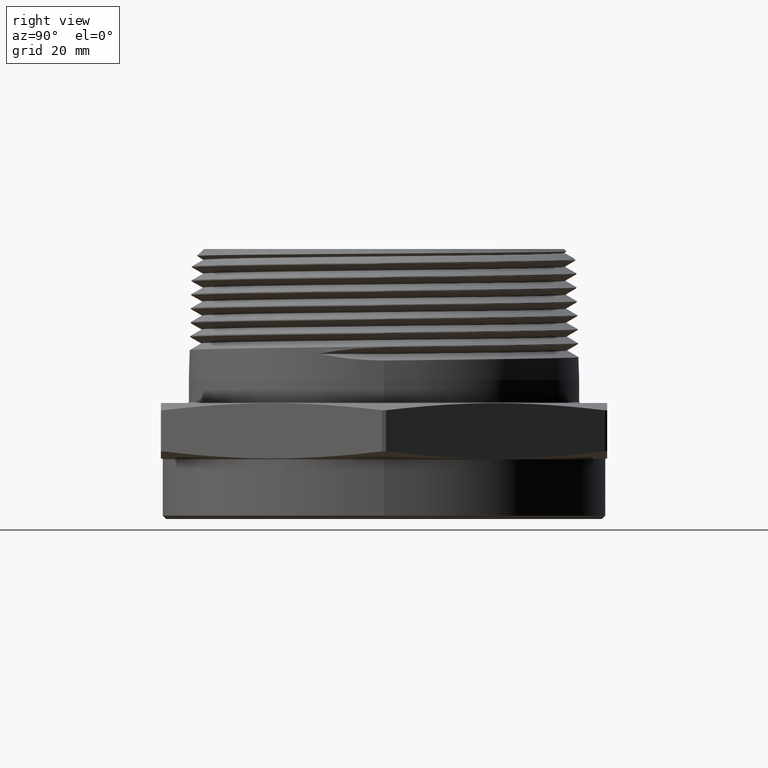
[diagram: clean part render]
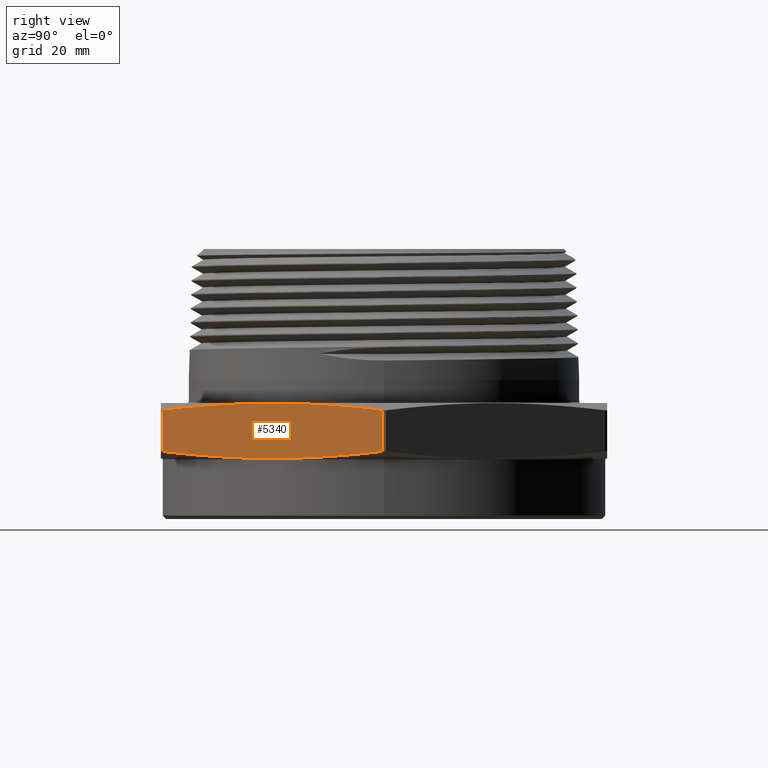
[diagram: same view with one face highlighted and labeled with its STEP entity id]
A machine part, right view. The second image highlights one B-rep face of the part: STEP entity #5340.
In plain terms, the highlighted planar face has unit normal (-0.866, 0.5, 0).
Its self-contained STEP definition (entity closure, byte-faithful):
#607 = PLANE ( 'NONE',  #2961 ) ;
#608 = CARTESIAN_POINT ( 'NONE',  ( 1.154700538379251000, -2.000000000000000000, 0.5000000000000000000 ) ) ;
#613 = DIRECTION ( 'NONE',  ( -0.8660254037844387100, 0.5000000000000001100, 0.0000000000000000000 ) ) ;
#614 = DIRECTION ( 'NONE',  ( -0.5000000000000000000, -0.8660254037844386000, 0.0000000000000000000 ) ) ;
#1715 = EDGE_LOOP ( 'NONE', ( #8241, #8242, #8243, #8244 ) ) ;
#1805 = EDGE_CURVE ( 'NONE', #8207, #8202, #3133, .T. ) ;
#1810 = EDGE_CURVE ( 'NONE', #8210, #8201, #7311, .T. ) ;
#2961 = AXIS2_PLACEMENT_3D ( 'NONE', #608, #613, #614 ) ;
#3133 = LINE ( 'NONE', #4727, #3135 ) ;
#3135 = VECTOR ( 'NONE', #4725, 39.37007874015748100 ) ;
#4725 = DIRECTION ( 'NONE',  ( -1.254986547952384500E-016, -0.0000000000000000000, -1.000000000000000000 ) ) ;
#4727 = CARTESIAN_POINT ( 'NONE',  ( 1.164766638964162000, -1.982565002352834500, 7.119340004652691300E-017 ) ) ;
#4737 = DIRECTION ( 'NONE',  ( 1.254986547952384500E-016, 0.0000000000000000000, 1.000000000000000000 ) ) ;
#4741 = CARTESIAN_POINT ( 'NONE',  ( 2.299334976173591300, -0.01743499764716485700, -7.119340004652691300E-017 ) ) ;
#5340 = ADVANCED_FACE ( 'NONE', ( #7436 ), #607, .F. ) ;
#6076 = CARTESIAN_POINT ( 'NONE',  ( 2.299334976173591300, -0.01743499764716485700, 0.4342347709472115200 ) ) ;
#6077 = CARTESIAN_POINT ( 'NONE',  ( 1.164766638964162000, -1.982565002352834500, 0.06576522905278790700 ) ) ;
#6080 = CARTESIAN_POINT ( 'NONE',  ( 1.164766638964162200, -1.982565002352835200, 0.4342347709472116900 ) ) ;
#6082 = CARTESIAN_POINT ( 'NONE',  ( 2.299334976173591300, -0.01743499764716485700, 0.06576522905278733800 ) ) ;
#6126 = CARTESIAN_POINT ( 'NONE',  ( 2.299334976173591300, -0.01743499764716485700, 0.4342347709472115200 ) ) ;
#6133 = CARTESIAN_POINT ( 'NONE',  ( 2.204787614739472300, -0.1811958313726374500, 0.4540669234924429900 ) ) ;
#6142 = CARTESIAN_POINT ( 'NONE',  ( 1.259314000398281900, -1.818804168627362200, 0.04593307650755602100 ) ) ;
#6143 = CARTESIAN_POINT ( 'NONE',  ( 1.164766638964162000, -1.982565002352834500, 0.06576522905278790700 ) ) ;
#6144 = CARTESIAN_POINT ( 'NONE',  ( 2.110240253305353700, -0.3449566650981102400, 0.4701365766791756900 ) ) ;
#6145 = CARTESIAN_POINT ( 'NONE',  ( 1.921145530437115000, -0.6724783325490547600, 0.4920722860234851300 ) ) ;
#6146 = CARTESIAN_POINT ( 'NONE',  ( 1.732050807568877400, -1.000000000000000200, 0.5036765827431136700 ) ) ;
#6147 = CARTESIAN_POINT ( 'NONE',  ( 1.542956084700638700, -1.327521667450945100, 0.4920722860234852900 ) ) ;
#6148 = CARTESIAN_POINT ( 'NONE',  ( 1.353861361832400500, -1.655043334901890000, 0.4701365766791758000 ) ) ;
#6149 = CARTESIAN_POINT ( 'NONE',  ( 1.259314000398281500, -1.818804168627362400, 0.4540669234924431000 ) ) ;
#6150 = CARTESIAN_POINT ( 'NONE',  ( 1.164766638964162200, -1.982565002352835200, 0.4342347709472116900 ) ) ;
#6153 = CARTESIAN_POINT ( 'NONE',  ( 1.353861361832401100, -1.655043334901889600, 0.02986342332082336100 ) ) ;
#6154 = CARTESIAN_POINT ( 'NONE',  ( 1.542956084700638500, -1.327521667450945100, 0.007927713976513794600 ) ) ;
#6155 = CARTESIAN_POINT ( 'NONE',  ( 1.732050807568877000, -1.000000000000000200, -0.003676582743114667300 ) ) ;
#6156 = CARTESIAN_POINT ( 'NONE',  ( 1.921145530437115400, -0.6724783325490552000, 0.007927713976513744300 ) ) ;
#6157 = CARTESIAN_POINT ( 'NONE',  ( 2.110240253305352800, -0.3449566650981101300, 0.02986342332082325300 ) ) ;
#6158 = CARTESIAN_POINT ( 'NONE',  ( 2.204787614739472300, -0.1811958313726375600, 0.04593307650755587600 ) ) ;
#6159 = CARTESIAN_POINT ( 'NONE',  ( 2.299334976173591300, -0.01743499764716485700, 0.06576522905278733800 ) ) ;
#7311 = LINE ( 'NONE', #4741, #7312 ) ;
#7312 = VECTOR ( 'NONE', #4737, 39.37007874015748100 ) ;
#7436 = FACE_OUTER_BOUND ( 'NONE', #1715, .T. ) ;
#7849 = B_SPLINE_CURVE_WITH_KNOTS ( 'NONE', 3,
 ( #6143, #6142, #6153, #6154, #6155, #6156, #6157, #6158, #6159 ),
 .UNSPECIFIED., .F., .F.,
 ( 4, 2, 1, 2, 4 ),
 ( 1.906903343507485200E-006, 0.01441092478590325600, 0.02881994266846300500, 0.04322896055102275200, 0.05763797843358250300 ),
 .UNSPECIFIED. ) ;
#7850 = B_SPLINE_CURVE_WITH_KNOTS ( 'NONE', 3,
 ( #6126, #6133, #6144, #6145, #6146, #6147, #6148, #6149, #6150 ),
 .UNSPECIFIED., .F., .F.,
 ( 4, 2, 1, 2, 4 ),
 ( 1.906903343340455600E-006, 0.01441092478590309100, 0.02881994266846284200, 0.04322896055102259200, 0.05763797843358234300 ),
 .UNSPECIFIED. ) ;
#8201 = VERTEX_POINT ( 'NONE', #6076 ) ;
#8202 = VERTEX_POINT ( 'NONE', #6077 ) ;
#8207 = VERTEX_POINT ( 'NONE', #6080 ) ;
#8210 = VERTEX_POINT ( 'NONE', #6082 ) ;
#8241 = ORIENTED_EDGE ( 'NONE', *, *, #8266, .T. ) ;
#8242 = ORIENTED_EDGE ( 'NONE', *, *, #1810, .T. ) ;
#8243 = ORIENTED_EDGE ( 'NONE', *, *, #8265, .T. ) ;
#8244 = ORIENTED_EDGE ( 'NONE', *, *, #1805, .T. ) ;
#8265 = EDGE_CURVE ( 'NONE', #8201, #8207, #7850, .T. ) ;
#8266 = EDGE_CURVE ( 'NONE', #8202, #8210, #7849, .T. ) ;